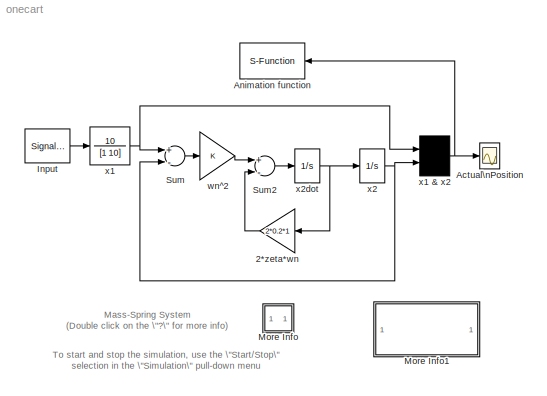
MODEL onecart
KIND model
CONFIG PreLoadFcn = zeta=0.2;wn=1;
BLOCK [Gain] 2*zeta*wn
  Gain = 2*0.2*1
  MaskIconFrame = on
  MaskIconOpaque = on
  MaskIconRotate = none
  MaskIconUnits = autoscale
BLOCK [Scope] Actual\nPosition
  DataFormat = Array
  NumInputPorts = 1
  Ports = [1]
  TickLabels = on
  TimeRange = 40.000000
BLOCK [S-Function] Animation function
  DeleteFcn = if ~isempty(findobj('type','figure','name','onecart Animation'));close('onecart Animation'); end;
  FunctionName = crtanim1
  MaskIconFrame = on
  MaskIconOpaque = on
  MaskIconRotate = none
  MaskIconUnits = autoscale
  Parameters = .1
  Ports = [1]
BLOCK [SignalGenerator] Input
  Frequency = 0.300000
  Ports = [0, 1]
  Units = rad/sec
  WaveForm = square
BLOCK [SubSystem] More Info
  MaskDisplay = disp('?')
  MaskIconFrame = on
  MaskIconOpaque = on
  MaskIconRotate = none
  MaskIconUnits = autoscale
  MinAlgLoopOccurrences = off
  Ports = []
  PropExecContextAcrossSSBoundary = on
  RTWSystemCode = Auto
  TreatAsAtomicUnit = off
BLOCK [SubSystem] More Info1
  MaskDisplay = disp('Double click\\nhere for\\nSimulink Help')
  MaskIconFrame = on
  MaskIconOpaque = on
  MaskIconRotate = none
  MaskIconUnits = autoscale
  MinAlgLoopOccurrences = off
  OpenFcn = simcad(bdroot);
  Ports = []
  PropExecContextAcrossSSBoundary = on
  RTWSystemCode = Auto
  TreatAsAtomicUnit = off
BLOCK [Sum] Sum
  Inputs = +-
  Ports = [2, 1]
BLOCK [Sum] Sum2
  Inputs = +-
  Ports = [2, 1]
BLOCK [Gain] wn^2
BLOCK [TransferFcn] x1
  Denominator = [1 10]
  Numerator = 10
BLOCK [Mux] x1 & x2
  Inputs = 2
  Ports = [2, 1]
BLOCK [Integrator] x2
  Ports = [1, 1]
BLOCK [Integrator] x2dot
  Ports = [1, 1]
ANNOTATION (root): Mass-Spring System\n(Double click on the \"?\" for more info)
ANNOTATION (root): To start and stop the simulation, use the \"Start/Stop\"\nselection in the \"Simulation\" pull-down menu
ANNOTATION More Info: Associated with the demo is an animation function that\nwill automatically open a figure window and display to it.
ANNOTATION More Info: This system models a simple spring-mass-damper\nsystem with a periodically varying forcing function.
ANNOTATION More Info: Try experimenting with different initial conditions and\ndifferent settings for the forcing function.
ANNOTATION More Info1: Associated with the demo is an animation function that\nwill automatically open a figure window and display to it.
ANNOTATION More Info1: This system models a double pendulum system where\nthe rest state has both pendulums hanging vertically.
ANNOTATION More Info1: Try experimenting with different initial conditions for\nalpha and gamma to see the unusal coupling effects.
LINE 2*zeta*wn:1 -> Sum2:2
LINE Input:1 -> x1:1
LINE Sum2:1 -> x2dot:1
LINE Sum:1 -> wn^2:1
LINE wn^2:1 -> Sum2:1
NET x1 & x2:1 -> Actual\nPosition:1, Animation function:1
NET x1:1 -> Sum:1, x1 & x2:1
NET x2:1 -> Sum:2, x1 & x2:2
NET x2dot:1 -> 2*zeta*wn:1, x2:1
note: NET lines group one-source signal fan-out (src -> all destinations, sorted); 1:1 wires keep LINE
